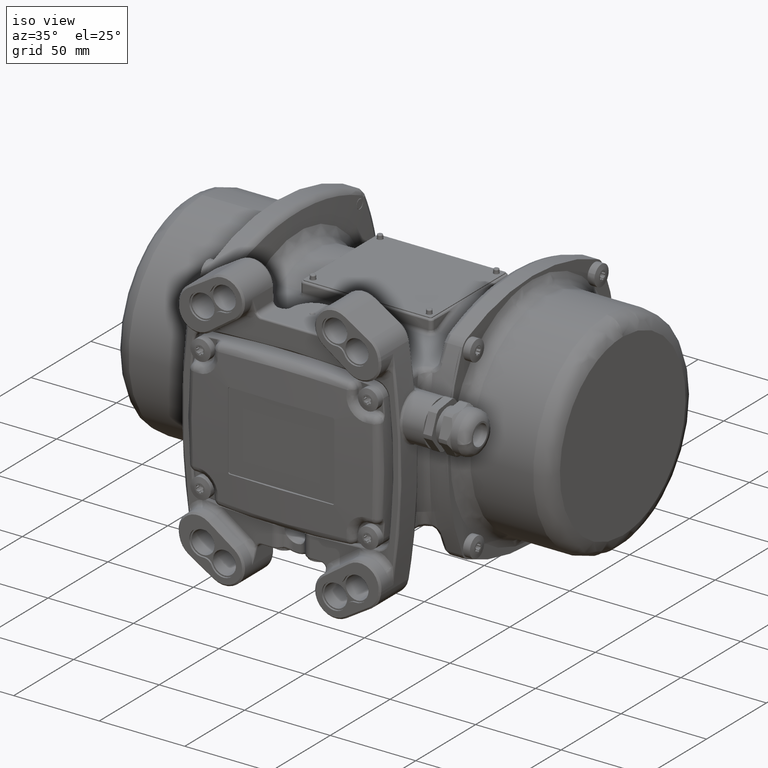
[diagram: clean part render]
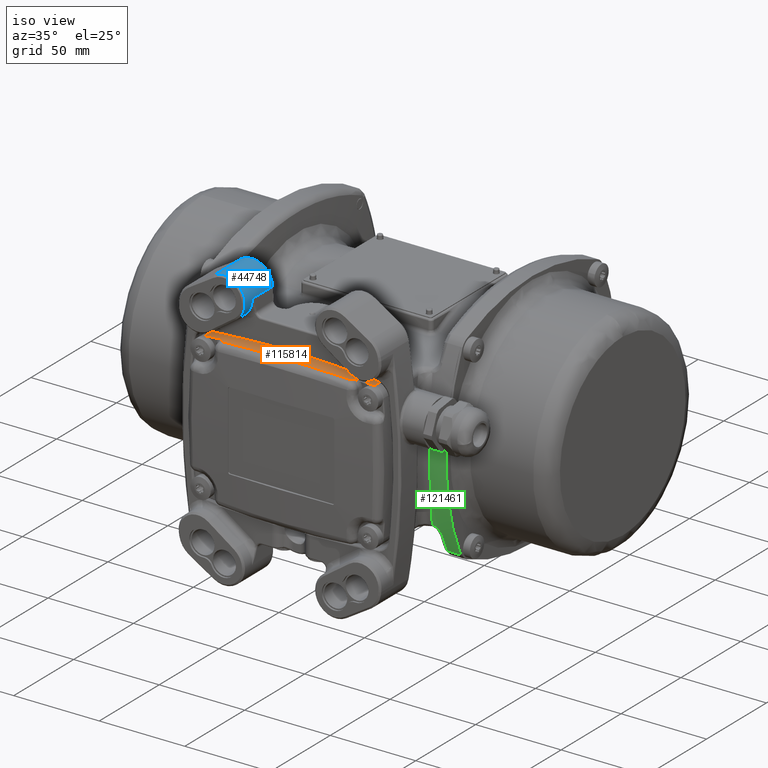
[diagram: same view with three faces highlighted in distinct colors, each labeled with its STEP entity id]
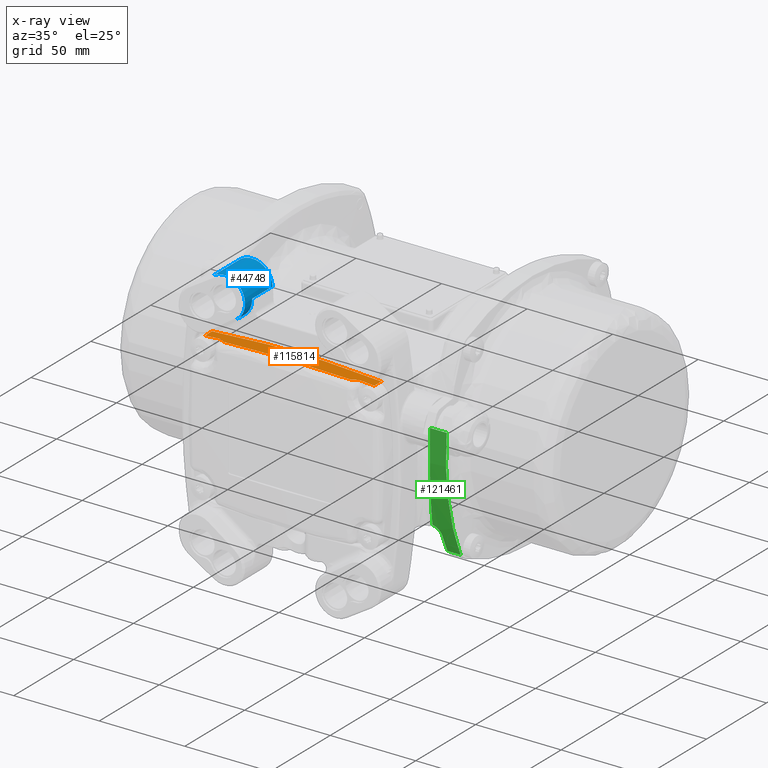
[diagram: x-ray of the same camera — body ghosted, the three highlighted faces saturated]
A machine part, iso view with three faces highlighted in distinct colors.
The next image is the same camera in x-ray (body ghosted, the three faces saturated) — at least one of them is partly hidden behind the body in this view.
Their STEP definitions:

[orange] entity #115814 — the highlighted conical surface has half-angle 1 deg.
#187 = CARTESIAN_POINT ( 'NONE',  ( -39.69350410549065300, 8.363272535823551100, 43.08521566002254100 ) ) ;
#3441 = CARTESIAN_POINT ( 'NONE',  ( -37.73969312295830000, 6.777537745583379600, 43.18233061923890400 ) ) ;
#4514 = CARTESIAN_POINT ( 'NONE',  ( 37.73996385179069800, 7.026178609762419900, 43.18666215173735200 ) ) ;
#4852 = CARTESIAN_POINT ( 'NONE',  ( -37.73969312295830000, 6.777537745583379600, 43.18233061923890400 ) ) ;
#5018 = VERTEX_POINT ( 'NONE', #43180 ) ;
#7101 = CARTESIAN_POINT ( 'NONE',  ( -39.75495388843648200, 8.395986656974308500, 43.08175952083451000 ) ) ;
#9258 = CARTESIAN_POINT ( 'NONE',  ( -41.00841819211542100, 8.910869351181924400, 43.00741264686561700 ) ) ;
#10066 = VERTEX_POINT ( 'NONE', #113597 ) ;
#10791 = EDGE_CURVE ( 'NONE', #10066, #127965, #89970, .T. ) ;
#13512 = CARTESIAN_POINT ( 'NONE',  ( 49.48945387931309600, 14.79650951871090000, 42.47643914219759900 ) ) ;
#16184 = CARTESIAN_POINT ( 'NONE',  ( -39.84071314782796200, 8.440527724344022400, 43.07690760681333600 ) ) ;
#16797 = CARTESIAN_POINT ( 'NONE',  ( -41.89641630436860700, 8.991273796780699700, 42.94784856377049900 ) ) ;
#17069 = CARTESIAN_POINT ( 'NONE',  ( 37.73969312295649600, 6.777537745626319500, 43.18233061923970000 ) ) ;
#17934 = LINE ( 'NONE', #79958, #30423 ) ;
#18292 = CARTESIAN_POINT ( 'NONE',  ( 39.11338502907723600, 8.023984178841203600, 43.11704955503564200 ) ) ;
#18434 = CARTESIAN_POINT ( 'NONE',  ( -38.46540401803159200, 7.575347089437823200, 43.15068635776764700 ) ) ;
#19304 = DIRECTION ( 'NONE',  ( -8.393553589786569700E-017, 1.000000000000000000, 8.393553589786589400E-017 ) ) ;
#19648 = FACE_OUTER_BOUND ( 'NONE', #103249, .T. ) ;
#19799 = VERTEX_POINT ( 'NONE', #4514 ) ;
#20569 = CARTESIAN_POINT ( 'NONE',  ( 41.89629932520404800, 8.991273796780529200, 42.94785665526514900 ) ) ;
#21340 = EDGE_CURVE ( 'NONE', #95618, #24547, #56936, .T. ) ;
#22817 = CARTESIAN_POINT ( 'NONE',  ( 39.53413707632950700, 8.275461403774695400, 43.09410227409371400 ) ) ;
#23052 = CARTESIAN_POINT ( 'NONE',  ( -39.51706457450244200, 8.267712804164011300, 43.09509743954303200 ) ) ;
#23188 = CONICAL_SURFACE ( 'NONE', #48557, 607.2464480604370500, 0.01745329251994283800 ) ;
#24547 = VERTEX_POINT ( 'NONE', #134485 ) ;
#25942 = B_SPLINE_CURVE_WITH_KNOTS ( 'NONE', 3,
 ( #17069, #28557, #113146, #46826, #126819, #3441 ),
 .UNSPECIFIED., .F., .F.,
 ( 4, 2, 4 ),
 ( 0.0000000000000000000, 0.5000000000000003300, 1.000000000000000000 ),
 .UNSPECIFIED. ) ;
#27139 = AXIS2_PLACEMENT_3D ( 'NONE', #61303, #19304, #110753 ) ;
#27426 = CARTESIAN_POINT ( 'NONE',  ( 39.65964169956780000, 8.345009212566248300, 43.08711384647973800 ) ) ;
#28557 = CARTESIAN_POINT ( 'NONE',  ( 25.15988623091053700, 6.225398770456140000, 43.95619978457730800 ) ) ;
#30423 = VECTOR ( 'NONE', #113978, 1000.000000000000000 ) ;
#33155 = DIRECTION ( 'NONE',  ( 0.001422338601106244000, -0.9998476951563911600, -0.01739435090355320000 ) ) ;
#33514 = VERTEX_POINT ( 'NONE', #74216 ) ;
#35320 = EDGE_CURVE ( 'NONE', #61550, #19799, #106805, .T. ) ;
#37341 = CARTESIAN_POINT ( 'NONE',  ( -8.371938814654839900E-014, 8.991273796780250300, -562.7500000000000000 ) ) ;
#38305 = ORIENTED_EDGE ( 'NONE', *, *, #91752, .T. ) ;
#39058 = CARTESIAN_POINT ( 'NONE',  ( 38.57543000114933600, 7.653678898201852700, 43.14502464929984200 ) ) ;
#41758 = ORIENTED_EDGE ( 'NONE', *, *, #120275, .T. ) ;
#42801 = CARTESIAN_POINT ( 'NONE',  ( 37.74861500673419800, 15.00000000000000000, 43.32557661159165000 ) ) ;
#43180 = CARTESIAN_POINT ( 'NONE',  ( -49.48119561069250200, 8.991273803591800700, 42.37544545326304800 ) ) ;
#43233 = ORIENTED_EDGE ( 'NONE', *, *, #35320, .T. ) ;
#44605 = CARTESIAN_POINT ( 'NONE',  ( -8.420665371788189400E-014, 14.79650951870984000, -562.7500000000000000 ) ) ;
#45928 = CARTESIAN_POINT ( 'NONE',  ( -39.67362534531442000, 8.352557269078436900, 43.08633031297421900 ) ) ;
#46787 = ORIENTED_EDGE ( 'NONE', *, *, #57748, .F. ) ;
#46826 = CARTESIAN_POINT ( 'NONE',  ( -12.57991557405003700, 5.950548909716046900, 44.34204124365419400 ) ) ;
#47695 = CARTESIAN_POINT ( 'NONE',  ( 41.89629932520404800, 8.991273796780529200, 42.94785665526514900 ) ) ;
#47964 = CARTESIAN_POINT ( 'NONE',  ( 37.93833792349864400, 7.179157765032310400, 43.17698213309555700 ) ) ;
#48051 = CARTESIAN_POINT ( 'NONE',  ( 39.66304228951132400, 8.346858274777979100, 43.08692358263179000 ) ) ;
#48557 = AXIS2_PLACEMENT_3D ( 'NONE', #76945, #129507, #49495 ) ;
#49495 = DIRECTION ( 'NONE',  ( -1.240174757536243900E-016, 7.713101328295001800E-017, -1.000000000000000000 ) ) ;
#51443 = EDGE_CURVE ( 'NONE', #33514, #5018, #129110, .T. ) ;
#51979 = CIRCLE ( 'NONE', #113211, 607.2464480604370500 ) ;
#52253 = EDGE_CURVE ( 'NONE', #127965, #33514, #51979, .T. ) ;
#55639 = DIRECTION ( 'NONE',  ( 0.001422338601106083900, 0.9998476951563911600, 0.01739435090355320000 ) ) ;
#56936 = B_SPLINE_CURVE_WITH_KNOTS ( 'NONE', 3,
 ( #61374, #132763, #9258, #89210, #135098, #16184, #7101, #119058, #187, #84705, #45928, #23052, #80133, #114473, #103005, #125910, #66389, #116718, #100769, #137444, #87075, #18434, #64185, #75632 ),
 .UNSPECIFIED., .F., .F.,
 ( 4, 1, 1, 1, 1, 1, 1, 2, 2, 1, 1, 1, 1, 1, 1, 2, 2, 4 ),
 ( 0.0000000000000000000, 0.2500000000000866500, 0.3750000000001321700, 0.4375000000001529900, 0.4687500000001654200, 0.4843750000001713600, 0.4921875000001726400, 0.4960937500001715800, 0.5000000000001704200, 0.6250000000001183500, 0.6875000000000922600, 0.7187500000000796000, 0.7343750000000716100, 0.7421875000000695000, 0.7460937500000682800, 0.7480468750000692800, 0.7500000000000702800, 1.000000000000000000 ),
 .UNSPECIFIED. ) ;
#56968 = VECTOR ( 'NONE', #55639, 1000.000000000000100 ) ;
#57311 = CARTESIAN_POINT ( 'NONE',  ( 38.66813891045998700, 7.719691569505223500, 43.14026825241084900 ) ) ;
#57748 = EDGE_CURVE ( 'NONE', #61550, #96630, #25942, .T. ) ;
#58116 = DIRECTION ( 'NONE',  ( -1.000000000000000000, -6.600088043804665800E-016, 1.828595821660167100E-016 ) ) ;
#59363 = CARTESIAN_POINT ( 'NONE',  ( 39.63567914145836800, 8.331937883418895300, 43.08845348649445100 ) ) ;
#61303 = CARTESIAN_POINT ( 'NONE',  ( -8.371938814654839900E-014, 8.991273796780250300, -562.7500000000000000 ) ) ;
#61374 = CARTESIAN_POINT ( 'NONE',  ( -41.89641630436860700, 8.991273796780699700, 42.94784856377049900 ) ) ;
#61550 = VERTEX_POINT ( 'NONE', #109137 ) ;
#63925 = B_SPLINE_CURVE_WITH_KNOTS ( 'NONE', 3,
 ( #109665, #47964, #66168, #64157, #39058, #95858, #119028, #57311, #63942, #137219, #82266, #128059, #18292, #86844, #22817, #98297, #59363, #125678, #27426, #48051, #107387, #116596, #20569 ),
 .UNSPECIFIED., .F., .F.,
 ( 4, 1, 1, 1, 1, 1, 1, 2, 2, 1, 1, 1, 1, 1, 2, 2, 4 ),
 ( 0.0000000000000000000, 0.1250000000000021400, 0.1875000000000050800, 0.2187500000000064700, 0.2343750000000093000, 0.2421875000000083500, 0.2460937500000081000, 0.2480468750000079700, 0.2500000000000078300, 0.3749999999999774100, 0.4374999999999618600, 0.4687499999999563700, 0.4843749999999518200, 0.4921874999999517100, 0.4960937499999496500, 0.4999999999999476000, 1.000000000000000000 ),
 .UNSPECIFIED. ) ;
#63942 = CARTESIAN_POINT ( 'NONE',  ( 38.67358665681415200, 7.723535936471162900, 43.13998777442473200 ) ) ;
#64157 = CARTESIAN_POINT ( 'NONE',  ( 38.46095333793728300, 7.570872772842212100, 43.15085897753559200 ) ) ;
#64185 = CARTESIAN_POINT ( 'NONE',  ( -38.15198670885141000, 7.341762753294435000, 43.16651908182208100 ) ) ;
#64490 = ORIENTED_EDGE ( 'NONE', *, *, #51443, .T. ) ;
#65605 = DIRECTION ( 'NONE',  ( 0.001084897771168410200, 0.9998476951563912700, 0.01741865342896095300 ) ) ;
#66168 = CARTESIAN_POINT ( 'NONE',  ( 38.20472390040658400, 7.381698690310194000, 43.16378800901058800 ) ) ;
#66389 = CARTESIAN_POINT ( 'NONE',  ( -38.71902148742938700, 7.754217927980700000, 43.13762280955448600 ) ) ;
#67350 = VECTOR ( 'NONE', #65605, 1000.000000000000000 ) ;
#71647 = CIRCLE ( 'NONE', #27139, 607.1451172939869100 ) ;
#74216 = CARTESIAN_POINT ( 'NONE',  ( -49.48945387931290400, 14.79650951871142100, 42.47643914219759900 ) ) ;
#75534 = ORIENTED_EDGE ( 'NONE', *, *, #52253, .T. ) ;
#75632 = CARTESIAN_POINT ( 'NONE',  ( -37.73996636302015200, 7.026178610270110700, 43.18666197250545500 ) ) ;
#76945 = CARTESIAN_POINT ( 'NONE',  ( -8.420665371788179300E-014, 14.79650951870769900, -562.7500000000000000 ) ) ;
#79562 = CIRCLE ( 'NONE', #97023, 607.1451172939869100 ) ;
#79841 = ORIENTED_EDGE ( 'NONE', *, *, #21340, .T. ) ;
#79958 = CARTESIAN_POINT ( 'NONE',  ( -37.74067756032210500, 7.684806152728020500, 43.19813637543529700 ) ) ;
#80133 = CARTESIAN_POINT ( 'NONE',  ( -39.27962124589988200, 8.128125912946634600, 43.10811730043928900 ) ) ;
#82266 = CARTESIAN_POINT ( 'NONE',  ( 38.67805567859609500, 7.726687708253380500, 43.13975763290186900 ) ) ;
#83263 = DIRECTION ( 'NONE',  ( -8.393553589786569700E-017, 1.000000000000000000, 8.393553589786589400E-017 ) ) ;
#84705 = CARTESIAN_POINT ( 'NONE',  ( -39.68119679179679300, 8.356648925321176000, 43.08590602974528100 ) ) ;
#86844 = CARTESIAN_POINT ( 'NONE',  ( 39.39647908300309400, 8.196181672149167600, 43.10168952405143000 ) ) ;
#87075 = CARTESIAN_POINT ( 'NONE',  ( -38.68190908778216700, 7.728115872216596600, 43.13953660681450200 ) ) ;
#89210 = CARTESIAN_POINT ( 'NONE',  ( -40.34868397027860000, 8.677127465294679700, 43.04747710004338800 ) ) ;
#89510 = EDGE_CURVE ( 'NONE', #5018, #95618, #71647, .T. ) ;
#89970 = LINE ( 'NONE', #133515, #56968 ) ;
#91752 = EDGE_CURVE ( 'NONE', #24547, #96630, #17934, .T. ) ;
#92562 = CARTESIAN_POINT ( 'NONE',  ( -49.48974335576809800, 15.00000000000000000, 42.47997926621284400 ) ) ;
#94667 = VECTOR ( 'NONE', #33155, 1000.000000000000100 ) ;
#95618 = VERTEX_POINT ( 'NONE', #16797 ) ;
#95858 = CARTESIAN_POINT ( 'NONE',  ( 38.62925887722466500, 7.692136731905067700, 43.14226669664287800 ) ) ;
#96630 = VERTEX_POINT ( 'NONE', #4852 ) ;
#97023 = AXIS2_PLACEMENT_3D ( 'NONE', #37341, #83263, #58116 ) ;
#98297 = CARTESIAN_POINT ( 'NONE',  ( 39.60199382649393800, 8.313396515830348200, 43.09033240902739700 ) ) ;
#99789 = VERTEX_POINT ( 'NONE', #47695 ) ;
#100769 = CARTESIAN_POINT ( 'NONE',  ( -38.69133122218504200, 7.734756668926672200, 43.13905115000102300 ) ) ;
#103005 = CARTESIAN_POINT ( 'NONE',  ( -38.83433061451408700, 7.834307524490894200, 43.13164642864527600 ) ) ;
#103249 = EDGE_LOOP ( 'NONE', ( #41758, #117110, #122635, #75534, #64490, #129229, #79841, #38305, #46787, #43233 ) ) ;
#104022 = DIRECTION ( 'NONE',  ( -1.000000000000000000, -3.688005116603276800E-015, -1.224954759101073000E-014 ) ) ;
#106805 = LINE ( 'NONE', #42801, #67350 ) ;
#107387 = CARTESIAN_POINT ( 'NONE',  ( 40.45769872555926100, 8.777312002600924100, 43.04242044788276900 ) ) ;
#109137 = CARTESIAN_POINT ( 'NONE',  ( 37.73969312295649600, 6.777537745626319500, 43.18233061923970000 ) ) ;
#109665 = CARTESIAN_POINT ( 'NONE',  ( 37.73996385179069800, 7.026178609762419900, 43.18666215173735200 ) ) ;
#110753 = DIRECTION ( 'NONE',  ( -1.000000000000000000, -6.600088043804665800E-016, 1.828595821660167100E-016 ) ) ;
#112061 = EDGE_CURVE ( 'NONE', #99789, #10066, #79562, .T. ) ;
#113146 = CARTESIAN_POINT ( 'NONE',  ( 12.57991557405016900, 5.950548909716046900, 44.34204124365419400 ) ) ;
#113211 = AXIS2_PLACEMENT_3D ( 'NONE', #44605, #131508, #104022 ) ;
#113597 = CARTESIAN_POINT ( 'NONE',  ( 49.48119561068300200, 8.991273796780909300, 42.37544545314455700 ) ) ;
#113978 = DIRECTION ( 'NONE',  ( 0.001084897771169208200, -0.9998476951563912700, -0.01741865342896070300 ) ) ;
#114473 = CARTESIAN_POINT ( 'NONE',  ( -38.98559562991301400, 7.936965209102357500, 43.12373556170614800 ) ) ;
#115814 = ADVANCED_FACE ( 'NONE', ( #19648 ), #23188, .T. ) ;
#116596 = CARTESIAN_POINT ( 'NONE',  ( 41.20006920521363700, 8.991004893067136900, 42.99601039299052700 ) ) ;
#116718 = CARTESIAN_POINT ( 'NONE',  ( -38.69964826810054600, 7.740611634141369100, 43.13862242150320700 ) ) ;
#117110 = ORIENTED_EDGE ( 'NONE', *, *, #112061, .T. ) ;
#119028 = CARTESIAN_POINT ( 'NONE',  ( 38.65532095831135000, 7.710629341512531100, 43.14092771840591900 ) ) ;
#119058 = CARTESIAN_POINT ( 'NONE',  ( -39.71195667745189400, 8.373168861445387600, 43.08417968970229600 ) ) ;
#120275 = EDGE_CURVE ( 'NONE', #19799, #99789, #63925, .T. ) ;
#122635 = ORIENTED_EDGE ( 'NONE', *, *, #10791, .T. ) ;
#125678 = CARTESIAN_POINT ( 'NONE',  ( 39.65006362086637600, 8.339792857719853500, 43.08764952928395800 ) ) ;
#125910 = CARTESIAN_POINT ( 'NONE',  ( -38.75763504172838500, 7.781209349012820000, 43.13562661476158400 ) ) ;
#126819 = CARTESIAN_POINT ( 'NONE',  ( -25.15988623102876400, 6.225398767716047400, 43.95619978452193500 ) ) ;
#127965 = VERTEX_POINT ( 'NONE', #13512 ) ;
#128059 = CARTESIAN_POINT ( 'NONE',  ( 38.85739882953701100, 7.853006847336833300, 43.13051752040686200 ) ) ;
#129110 = LINE ( 'NONE', #92562, #94667 ) ;
#129229 = ORIENTED_EDGE ( 'NONE', *, *, #89510, .T. ) ;
#129507 = DIRECTION ( 'NONE',  ( -8.393553589786569700E-017, 1.000000000000000000, 8.391321789633719500E-017 ) ) ;
#131508 = DIRECTION ( 'NONE',  ( 8.393553589786569700E-017, -1.000000000000000000, -8.393553589786589400E-017 ) ) ;
#132763 = CARTESIAN_POINT ( 'NONE',  ( -41.54809939387728000, 8.991134654444829600, 42.97193938021607800 ) ) ;
#133515 = CARTESIAN_POINT ( 'NONE',  ( 49.48974335576820500, 15.00000000000000000, 42.47997926621270200 ) ) ;
#134485 = CARTESIAN_POINT ( 'NONE',  ( -37.73996636302015200, 7.026178610270110700, 43.18666197250545500 ) ) ;
#135098 = CARTESIAN_POINT ( 'NONE',  ( -40.01129100401379200, 8.525231764330929000, 43.06715781555561100 ) ) ;
#137219 = CARTESIAN_POINT ( 'NONE',  ( 38.67720834067986900, 7.726090082219348800, 43.13980126721839500 ) ) ;
#137444 = CARTESIAN_POINT ( 'NONE',  ( -38.68578336098757100, 7.730848092911004200, 43.13933704073084400 ) ) ;

[blue] entity #44748 — the highlighted cylindrical surface (edge-blend (fillet) strip) has radius 12 mm, axis along (-0, -1, 0).
#39 = AXIS2_PLACEMENT_3D ( 'NONE', #129678, #57123, #93700 ) ;
#4934 = CARTESIAN_POINT ( 'NONE',  ( -20.50731007577085000, 10.00000000000000000, 70.41879396043010800 ) ) ;
#7374 = EDGE_CURVE ( 'NONE', #48913, #127922, #98856, .T. ) ;
#9926 = CARTESIAN_POINT ( 'NONE',  ( -25.61708276378739800, 7.000000000000000000, 60.17017546853209400 ) ) ;
#10866 = EDGE_CURVE ( 'NONE', #24526, #107154, #36771, .T. ) ;
#11707 = DIRECTION ( 'NONE',  ( 8.326672684688669100E-017, 1.000000000000000000, -8.326672684688669100E-017 ) ) ;
#12915 = ORIENTED_EDGE ( 'NONE', *, *, #10866, .T. ) ;
#14873 = EDGE_CURVE ( 'NONE', #124320, #101351, #50750, .T. ) ;
#22354 = EDGE_CURVE ( 'NONE', #48913, #24526, #105919, .T. ) ;
#24526 = VERTEX_POINT ( 'NONE', #47569 ) ;
#24635 = DIRECTION ( 'NONE',  ( 8.326672684688669100E-017, 1.000000000000000000, -8.326672684688669100E-017 ) ) ;
#25485 = AXIS2_PLACEMENT_3D ( 'NONE', #140590, #122169, #78755 ) ;
#26885 = CARTESIAN_POINT ( 'NONE',  ( -25.61708276378739800, 25.00000000000000000, 60.17017546853209400 ) ) ;
#34459 = ORIENTED_EDGE ( 'NONE', *, *, #106596, .F. ) ;
#35005 = EDGE_LOOP ( 'NONE', ( #76893, #40147, #34459, #103098, #120650, #12915 ) ) ;
#36771 = CIRCLE ( 'NONE', #25485, 11.99999999999999600 ) ;
#39264 = CYLINDRICAL_SURFACE ( 'NONE', #51449, 11.99999999999999600 ) ;
#40147 = ORIENTED_EDGE ( 'NONE', *, *, #14873, .T. ) ;
#42299 = CARTESIAN_POINT ( 'NONE',  ( -20.50731007577085000, 7.000000000000000000, 70.41879396043010800 ) ) ;
#44748 = ADVANCED_FACE ( 'NONE', ( #48263 ), #39264, .T. ) ;
#47569 = CARTESIAN_POINT ( 'NONE',  ( -38.82835434133780000, 0.9999999999999731300, 80.19568199437750900 ) ) ;
#48263 = FACE_OUTER_BOUND ( 'NONE', #35005, .T. ) ;
#48913 = VERTEX_POINT ( 'NONE', #137197 ) ;
#50750 = CIRCLE ( 'NONE', #39, 11.99999999999999600 ) ;
#51449 = AXIS2_PLACEMENT_3D ( 'NONE', #119238, #71171, #105552 ) ;
#52462 = CARTESIAN_POINT ( 'NONE',  ( -25.61708276378739800, 0.9999999999999590300, 60.17017546853209400 ) ) ;
#52932 = DIRECTION ( 'NONE',  ( -8.326672684688679000E-017, -1.000000000000000000, 8.326672684688669100E-017 ) ) ;
#57123 = DIRECTION ( 'NONE',  ( -8.326672684688669100E-017, -1.000000000000000000, 8.326672684688669100E-017 ) ) ;
#62980 = AXIS2_PLACEMENT_3D ( 'NONE', #132896, #11707, #139837 ) ;
#66664 = LINE ( 'NONE', #4934, #95383 ) ;
#71171 = DIRECTION ( 'NONE',  ( -8.326672684688669100E-017, -1.000000000000000000, 8.326672684688669100E-017 ) ) ;
#71537 = DIRECTION ( 'NONE',  ( -8.326672684688669100E-017, -1.000000000000000000, 8.326672684688669100E-017 ) ) ;
#76893 = ORIENTED_EDGE ( 'NONE', *, *, #107009, .T. ) ;
#78755 = DIRECTION ( 'NONE',  ( 1.156482317317871700E-015, -9.035018104045873200E-017, -1.000000000000000000 ) ) ;
#82008 = VECTOR ( 'NONE', #24635, 1000.000000000000000 ) ;
#93700 = DIRECTION ( 'NONE',  ( 0.0000000000000000000, -7.228014483236698300E-017, -1.000000000000000000 ) ) ;
#95383 = VECTOR ( 'NONE', #52932, 1000.000000000000000 ) ;
#98438 = VECTOR ( 'NONE', #71537, 1000.000000000000000 ) ;
#98856 = CIRCLE ( 'NONE', #62980, 11.99999999999999600 ) ;
#101351 = VERTEX_POINT ( 'NONE', #42299 ) ;
#103098 = ORIENTED_EDGE ( 'NONE', *, *, #7374, .F. ) ;
#105552 = DIRECTION ( 'NONE',  ( 0.0000000000000000000, 0.0000000000000000000, -1.000000000000000000 ) ) ;
#105919 = LINE ( 'NONE', #133520, #98438 ) ;
#106596 = EDGE_CURVE ( 'NONE', #127922, #101351, #66664, .T. ) ;
#107009 = EDGE_CURVE ( 'NONE', #107154, #124320, #129799, .T. ) ;
#107154 = VERTEX_POINT ( 'NONE', #52462 ) ;
#119238 = CARTESIAN_POINT ( 'NONE',  ( -32.50000000000000000, 25.00000000000000000, 70.00000000000000000 ) ) ;
#120650 = ORIENTED_EDGE ( 'NONE', *, *, #22354, .T. ) ;
#122169 = DIRECTION ( 'NONE',  ( 8.326672684688669100E-017, 1.000000000000000000, -8.326672684688669100E-017 ) ) ;
#124320 = VERTEX_POINT ( 'NONE', #9926 ) ;
#127922 = VERTEX_POINT ( 'NONE', #130161 ) ;
#129678 = CARTESIAN_POINT ( 'NONE',  ( -32.50000000000000000, 7.000000000000000000, 70.00000000000000000 ) ) ;
#129799 = LINE ( 'NONE', #26885, #82008 ) ;
#130161 = CARTESIAN_POINT ( 'NONE',  ( -20.50731007577085000, 24.00000000000000000, 70.41879396043010800 ) ) ;
#132896 = CARTESIAN_POINT ( 'NONE',  ( -32.50000000000000000, 24.00000000000000000, 70.00000000000000000 ) ) ;
#133520 = CARTESIAN_POINT ( 'NONE',  ( -38.82835434133780000, 25.00000000000000000, 80.19568199437750900 ) ) ;
#137197 = CARTESIAN_POINT ( 'NONE',  ( -38.82835434133780000, 24.00000000000000000, 80.19568199437750900 ) ) ;
#139837 = DIRECTION ( 'NONE',  ( 0.0000000000000000000, 0.0000000000000000000, 1.000000000000000000 ) ) ;
#140590 = CARTESIAN_POINT ( 'NONE',  ( -32.50000000000000000, 0.9999999999999590300, 70.00000000000000000 ) ) ;

[green] entity #121461 — the highlighted cylindrical surface (partial cylindrical patch) has radius 130 mm, axis along (1, -0, 0).
#2366 = EDGE_CURVE ( 'NONE', #39954, #92252, #136959, .T. ) ;
#2536 = DIRECTION ( 'NONE',  ( 0.0000000000000000000, 3.629575272813011900E-015, 1.000000000000000000 ) ) ;
#6908 = CARTESIAN_POINT ( 'NONE',  ( 62.71608040912039400, 37.31793558072986600, -26.92069278941142900 ) ) ;
#6996 = CARTESIAN_POINT ( 'NONE',  ( 62.71954144802499800, 37.31027146660586900, -26.88446103039210300 ) ) ;
#7304 = ORIENTED_EDGE ( 'NONE', *, *, #61629, .T. ) ;
#13821 = CARTESIAN_POINT ( 'NONE',  ( 63.43822135577006800, 35.72630963750526000, -17.95879141212145000 ) ) ;
#14626 = CARTESIAN_POINT ( 'NONE',  ( 64.02266875413478400, 41.37570860134984900, -41.71888893628958800 ) ) ;
#15058 = CARTESIAN_POINT ( 'NONE',  ( 73.50000000000000000, 35.23898336105674600, 13.84158869013406000 ) ) ;
#15813 = CARTESIAN_POINT ( 'NONE',  ( 65.70600795756411100, 42.86114908567575600, -45.86927019522740100 ) ) ;
#16076 = CARTESIAN_POINT ( 'NONE',  ( 63.66110573257269300, 35.23898296520665200, 13.84158873252411900 ) ) ;
#16963 = CARTESIAN_POINT ( 'NONE',  ( 64.82888115823132600, 41.73653332600470400, -42.76943518421455800 ) ) ;
#18089 = LINE ( 'NONE', #47848, #87087 ) ;
#18327 = CARTESIAN_POINT ( 'NONE',  ( 61.77384088895426100, 39.41194664738323200, -35.69624626178215000 ) ) ;
#18786 = ORIENTED_EDGE ( 'NONE', *, *, #50570, .T. ) ;
#20807 = ORIENTED_EDGE ( 'NONE', *, *, #58973, .T. ) ;
#22938 = CARTESIAN_POINT ( 'NONE',  ( 63.76805000651433600, 35.00536754529466800, -11.47661473654210000 ) ) ;
#23043 = DIRECTION ( 'NONE',  ( -1.000000000000000000, 3.081487911019565000E-033, -0.0000000000000000000 ) ) ;
#25201 = CARTESIAN_POINT ( 'NONE',  ( 62.72623981724831300, 37.29543959648779600, -26.81419590146954600 ) ) ;
#26751 = EDGE_CURVE ( 'NONE', #108469, #80820, #91858, .T. ) ;
#27559 = CARTESIAN_POINT ( 'NONE',  ( 63.94103899394942700, 34.62816706651874900, 5.882529588482936900 ) ) ;
#30679 = CARTESIAN_POINT ( 'NONE',  ( 65.26850755366773200, 42.04646758771188800, -43.64906803563597700 ) ) ;
#31953 = CARTESIAN_POINT ( 'NONE',  ( -84.50000000000000000, 164.5000000000000000, 2.125932774906109600E-013 ) ) ;
#32133 = CARTESIAN_POINT ( 'NONE',  ( 63.97561589278353000, 34.55287342389272000, -4.353607782933373500 ) ) ;
#35196 = LINE ( 'NONE', #92292, #56527 ) ;
#36527 = CYLINDRICAL_SURFACE ( 'NONE', #78900, 130.0000000000000000 ) ;
#36613 = CARTESIAN_POINT ( 'NONE',  ( 63.98974438475014600, 34.52226870842175500, 2.472260252446421400 ) ) ;
#36653 = AXIS2_PLACEMENT_3D ( 'NONE', #57333, #23043, #2536 ) ;
#39954 = VERTEX_POINT ( 'NONE', #133118 ) ;
#42098 = DIRECTION ( 'NONE',  ( 1.000000000000000000, -3.081487911019565000E-033, 0.0000000000000000000 ) ) ;
#43482 = CARTESIAN_POINT ( 'NONE',  ( 62.29590663744240700, 38.24842512253353300, -31.31082735160004700 ) ) ;
#47848 = CARTESIAN_POINT ( 'NONE',  ( -84.50000000000000000, 35.23898336105674600, 13.84158869013406000 ) ) ;
#48484 = CARTESIAN_POINT ( 'NONE',  ( 61.14662600447250200, 40.83296955542095900, -40.08073969045689500 ) ) ;
#50437 = CARTESIAN_POINT ( 'NONE',  ( 63.06572153829848300, 36.54522207336562900, -23.01880755320999200 ) ) ;
#50570 = EDGE_CURVE ( 'NONE', #108469, #65609, #35196, .T. ) ;
#51231 = CARTESIAN_POINT ( 'NONE',  ( 61.14662600447250200, 40.83296955542095900, -40.08073969045689500 ) ) ;
#52670 = CARTESIAN_POINT ( 'NONE',  ( 63.99952462424783300, 34.50103378648825700, 0.7696578578866640800 ) ) ;
#56527 = VECTOR ( 'NONE', #42098, 1000.000000000000000 ) ;
#57333 = CARTESIAN_POINT ( 'NONE',  ( 73.50000000000000000, 164.5000000000000000, 2.125932774906109600E-013 ) ) ;
#58156 = CARTESIAN_POINT ( 'NONE',  ( 62.71687799902679900, 41.03381004933839900, -40.69566558793208300 ) ) ;
#58973 = EDGE_CURVE ( 'NONE', #65609, #105752, #100470, .T. ) ;
#59491 = CARTESIAN_POINT ( 'NONE',  ( 63.70568400994768200, 35.14157857964252700, -12.90035952282292600 ) ) ;
#61629 = EDGE_CURVE ( 'NONE', #105752, #39954, #18089, .T. ) ;
#63729 = DIRECTION ( 'NONE',  ( -1.000000000000000000, 3.081487911019565000E-033, -0.0000000000000000000 ) ) ;
#64082 = CARTESIAN_POINT ( 'NONE',  ( 63.85633324913124700, 34.81266695378931800, 9.294311314293196300 ) ) ;
#64973 = CARTESIAN_POINT ( 'NONE',  ( 63.53687560707610500, 41.22353593199405000, -41.26705990724098400 ) ) ;
#65609 = VERTEX_POINT ( 'NONE', #136459 ) ;
#65726 = CARTESIAN_POINT ( 'NONE',  ( 65.85936725665460800, 46.67790775568610000, -54.93591338252570500 ) ) ;
#65839 = EDGE_LOOP ( 'NONE', ( #95821, #18786, #20807, #7304, #134812, #96473 ) ) ;
#68555 = CARTESIAN_POINT ( 'NONE',  ( 63.99740800215576500, 34.50562645105808500, 1.336244019517868400 ) ) ;
#68646 = CARTESIAN_POINT ( 'NONE',  ( 62.75952674611043100, 37.22174864617036100, -26.46285704802598500 ) ) ;
#71772 = CARTESIAN_POINT ( 'NONE',  ( 64.65181089110132000, 41.64087454184480200, -42.49367434794044800 ) ) ;
#73438 = EDGE_CURVE ( 'NONE', #80820, #92252, #136063, .T. ) ;
#75528 = CARTESIAN_POINT ( 'NONE',  ( 63.84496827195732000, 34.83748841635556900, -9.482616675353206400 ) ) ;
#76345 = CARTESIAN_POINT ( 'NONE',  ( 61.79809667175381100, 40.89325659156480000, -40.26652113550528600 ) ) ;
#78674 = CARTESIAN_POINT ( 'NONE',  ( 65.58664822044903500, 42.38099028267301100, -44.58006761061445600 ) ) ;
#78900 = AXIS2_PLACEMENT_3D ( 'NONE', #31953, #116544, #121118 ) ;
#80820 = VERTEX_POINT ( 'NONE', #15813 ) ;
#86874 = CARTESIAN_POINT ( 'NONE',  ( 63.69254369257581800, 35.17028598695679900, -13.18504992365756600 ) ) ;
#87087 = VECTOR ( 'NONE', #63729, 1000.000000000000000 ) ;
#87710 = CARTESIAN_POINT ( 'NONE',  ( 65.70600795756411100, 42.86114908567575600, -45.86927019522740100 ) ) ;
#88433 = CARTESIAN_POINT ( 'NONE',  ( 65.85936725665460800, 46.67790775568610000, -54.93591338252570500 ) ) ;
#91858 = B_SPLINE_CURVE_WITH_KNOTS ( 'NONE', 3,
 ( #65726, #124307, #99162, #87710 ),
 .UNSPECIFIED., .F., .F.,
 ( 4, 4 ),
 ( 0.0000000000000000000, 1.000000000000000000 ),
 .UNSPECIFIED. ) ;
#92252 = VERTEX_POINT ( 'NONE', #48484 ) ;
#92292 = CARTESIAN_POINT ( 'NONE',  ( -84.50000000000000000, 46.67790775568610000, -54.93591338252570500 ) ) ;
#92344 = CARTESIAN_POINT ( 'NONE',  ( 65.69593277680662900, 42.61524025204265300, -45.21715456693200300 ) ) ;
#93819 = CARTESIAN_POINT ( 'NONE',  ( 63.57218872523028400, 35.43326877312048100, -15.71179085826819700 ) ) ;
#95821 = ORIENTED_EDGE ( 'NONE', *, *, #26751, .F. ) ;
#96473 = ORIENTED_EDGE ( 'NONE', *, *, #73438, .F. ) ;
#99162 = CARTESIAN_POINT ( 'NONE',  ( 65.75344609987648400, 44.01899038666649500, -48.93970242129569900 ) ) ;
#100470 = CIRCLE ( 'NONE', #36653, 130.0000000000000000 ) ;
#100665 = CARTESIAN_POINT ( 'NONE',  ( 63.77243391142957300, 34.99566220514969200, 11.56931050831425800 ) ) ;
#102904 = CARTESIAN_POINT ( 'NONE',  ( 63.72507168694491500, 35.09922655633857900, -12.47329398402495700 ) ) ;
#105752 = VERTEX_POINT ( 'NONE', #15058 ) ;
#107519 = CARTESIAN_POINT ( 'NONE',  ( 63.68576131682546300, 35.18510464995499400, -13.32957951865930800 ) ) ;
#108469 = VERTEX_POINT ( 'NONE', #88433 ) ;
#110671 = CARTESIAN_POINT ( 'NONE',  ( 65.13686128264613700, 41.93891052689483000, -43.34596501359022400 ) ) ;
#112123 = CARTESIAN_POINT ( 'NONE',  ( 63.19665702375910900, 36.25705629003773800, -21.33173148723243900 ) ) ;
#116544 = DIRECTION ( 'NONE',  ( 1.000000000000000000, -3.081487911019565000E-033, 0.0000000000000000000 ) ) ;
#118868 = FACE_OUTER_BOUND ( 'NONE', #65839, .T. ) ;
#119747 = CARTESIAN_POINT ( 'NONE',  ( 62.41655747259121500, 40.98058320586954300, -40.53360846547853700 ) ) ;
#119858 = CARTESIAN_POINT ( 'NONE',  ( 63.27592186939499900, 41.15520453736599600, -41.06213207882218800 ) ) ;
#121118 = DIRECTION ( 'NONE',  ( 0.0000000000000000000, 0.0000000000000000000, 1.000000000000000000 ) ) ;
#121461 = ADVANCED_FACE ( 'NONE', ( #118868 ), #36527, .T. ) ;
#123469 = CARTESIAN_POINT ( 'NONE',  ( 61.14662600447250200, 40.83296955542095900, -40.08073969045689500 ) ) ;
#124307 = CARTESIAN_POINT ( 'NONE',  ( 65.80470571213808700, 45.29125432904890400, -51.96193155743949900 ) ) ;
#125802 = CARTESIAN_POINT ( 'NONE',  ( 63.89540385885822400, 34.72756272210698100, -7.772832462103598200 ) ) ;
#126720 = CARTESIAN_POINT ( 'NONE',  ( 64.24932519861521000, 41.46050795297585300, -41.96856519755958500 ) ) ;
#128095 = CARTESIAN_POINT ( 'NONE',  ( 63.97310605092499000, 34.55841139731212800, 4.176816878838981700 ) ) ;
#130479 = CARTESIAN_POINT ( 'NONE',  ( 62.80548989791097400, 37.12004010858217400, -25.97094416714695700 ) ) ;
#132757 = CARTESIAN_POINT ( 'NONE',  ( 62.73626754038127700, 37.27323712852997100, -26.70879690249708500 ) ) ;
#133118 = CARTESIAN_POINT ( 'NONE',  ( 63.66110573257269300, 35.23898296520665200, 13.84158873252411900 ) ) ;
#134812 = ORIENTED_EDGE ( 'NONE', *, *, #2366, .T. ) ;
#134986 = CARTESIAN_POINT ( 'NONE',  ( 62.89519516288120800, 36.92169127341898600, -24.98700372408439200 ) ) ;
#136063 = B_SPLINE_CURVE_WITH_KNOTS ( 'NONE', 3,
 ( #140507, #92344, #78674, #30679, #110671, #16963, #71772, #126720, #14626, #64973, #119858, #58156, #119747, #76345, #138144, #51231 ),
 .UNSPECIFIED., .F., .F.,
 ( 4, 2, 2, 2, 2, 2, 2, 4 ),
 ( 0.0000000000000000000, 0.2500000000000002800, 0.3750000000000001100, 0.4999999999999998900, 0.6250000000000003300, 0.7500000000000002200, 0.8750000000000000000, 1.000000000000000000 ),
 .UNSPECIFIED. ) ;
#136459 = CARTESIAN_POINT ( 'NONE',  ( 73.50000000000000000, 46.67790775568610000, -54.93591338252570500 ) ) ;
#136959 = B_SPLINE_CURVE_WITH_KNOTS ( 'NONE', 3,
 ( #16076, #100665, #64082, #27559, #128095, #36613, #68555, #52670, #137347, #32133, #125802, #75528, #22938, #102904, #59491, #86874, #107519, #93819, #13821, #112123, #50437, #134986, #130479, #68646, #132757, #25201, #6996, #6908, #43482, #18327, #123469 ),
 .UNSPECIFIED., .F., .F.,
 ( 4, 2, 1, 2, 2, 2, 1, 1, 1, 2, 2, 2, 1, 1, 1, 1, 1, 2, 2, 4 ),
 ( 0.0000000000000000000, 0.1250000000000023000, 0.1875000000000034400, 0.2187500000000040200, 0.2500000000000046100, 0.3750000000000068800, 0.4375000000000080500, 0.4687500000000086000, 0.4843750000000088300, 0.4921875000000089400, 0.5000000000000091000, 0.6250000000000103300, 0.6875000000000108800, 0.7187500000000111000, 0.7343750000000113200, 0.7421875000000114400, 0.7460937500000115500, 0.7480468750000115500, 0.7500000000000115500, 1.000000000000000000 ),
 .UNSPECIFIED. ) ;
#137347 = CARTESIAN_POINT ( 'NONE',  ( 64.00154506223175600, 34.49664032090962700, -2.074586452443724300 ) ) ;
#138144 = CARTESIAN_POINT ( 'NONE',  ( 61.47797274752250000, 40.85858005341174200, -40.15975813427548500 ) ) ;
#140507 = CARTESIAN_POINT ( 'NONE',  ( 65.70600795756411100, 42.86114908567575600, -45.86927019522740100 ) ) ;